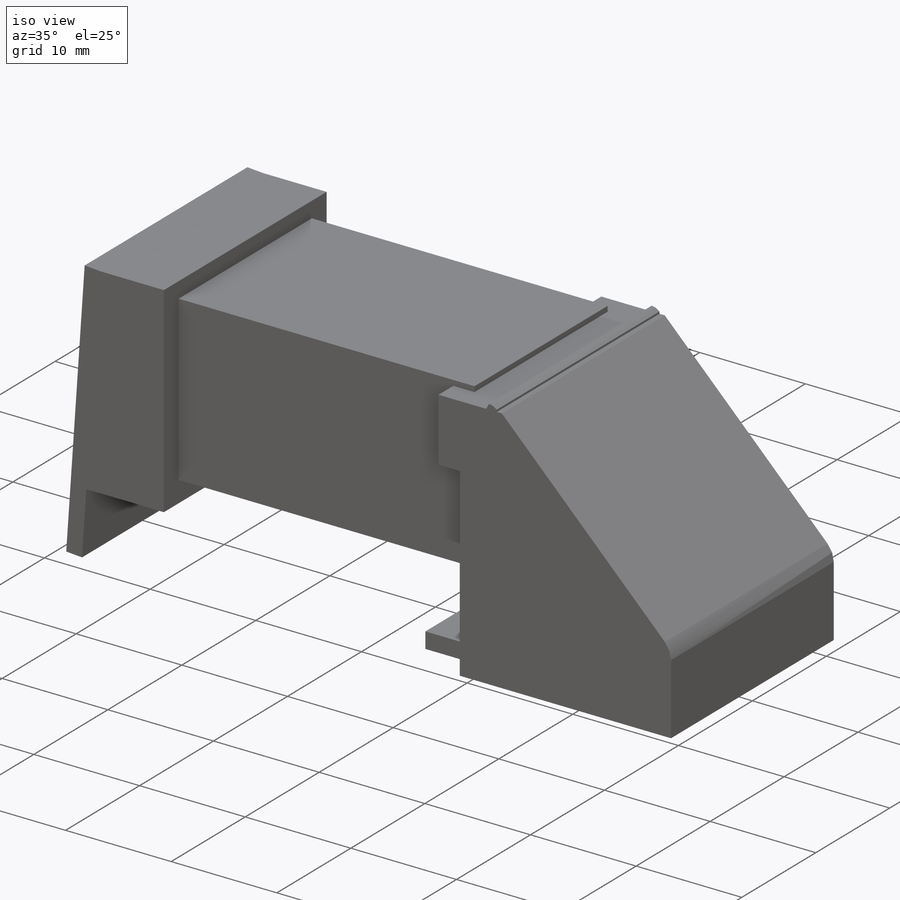
[diagram: iso view]
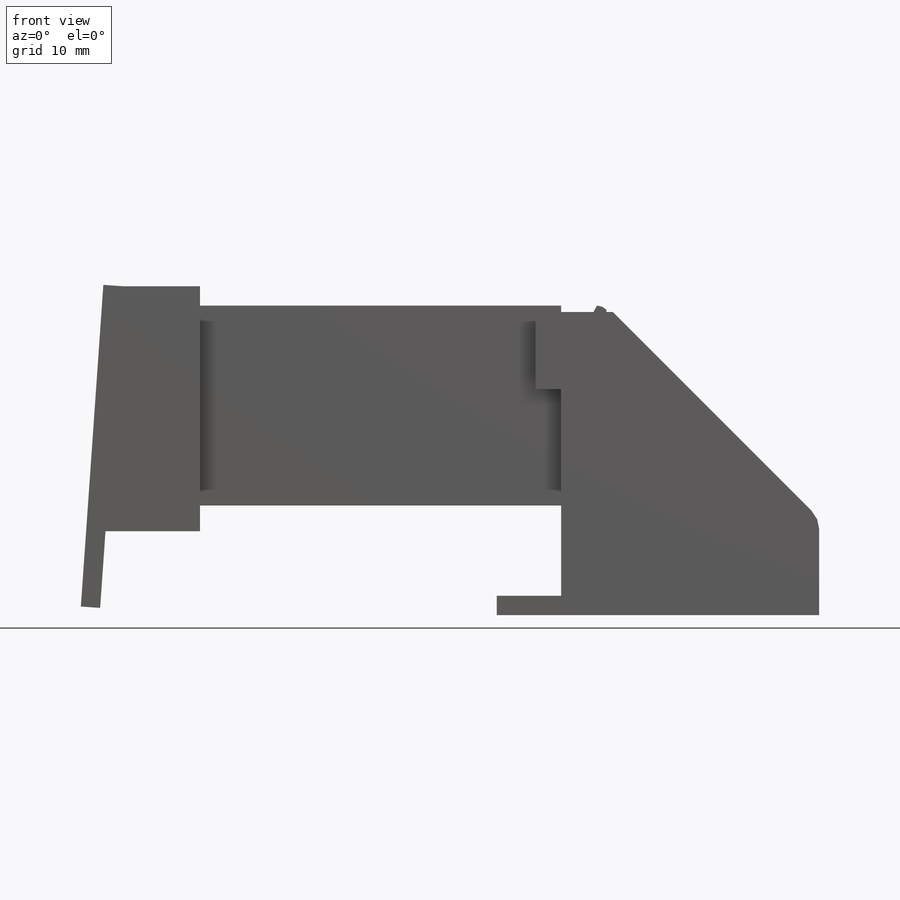
[diagram: front view]
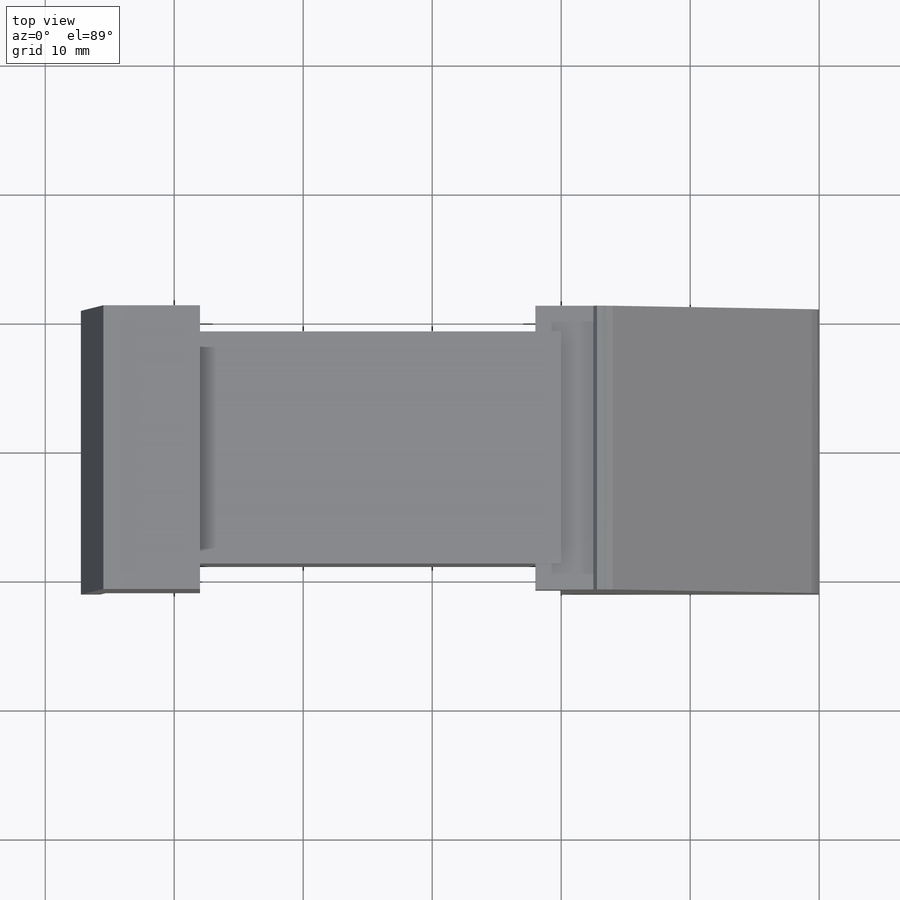
[diagram: top view]
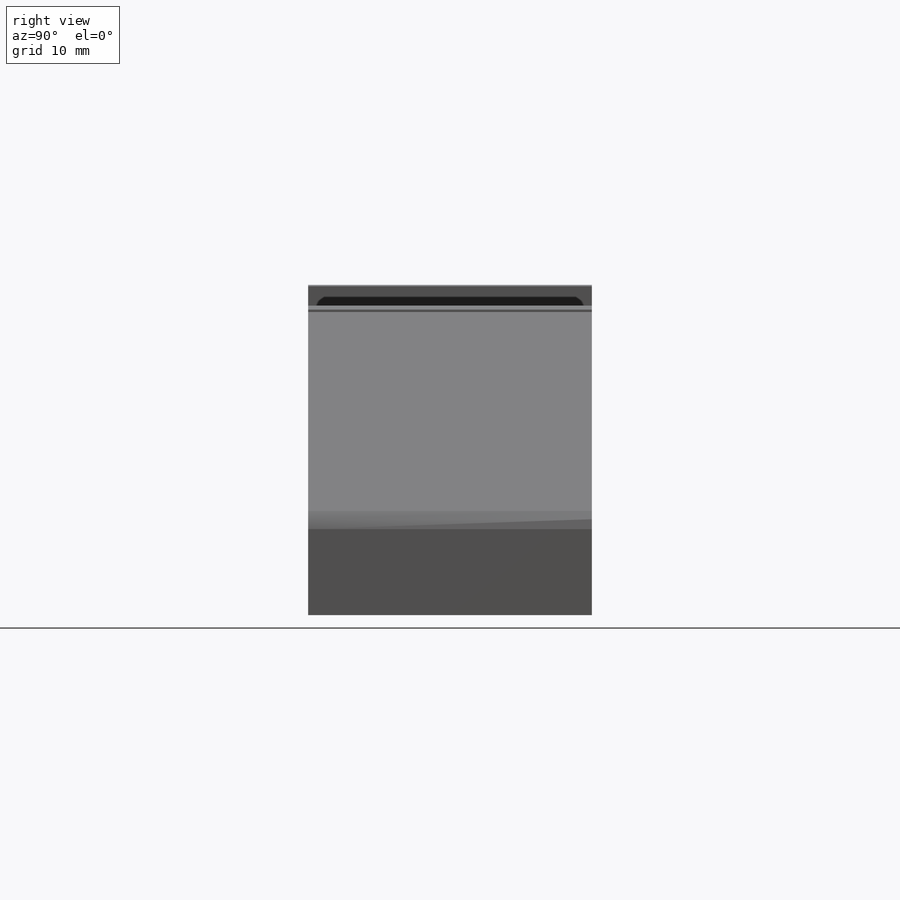
[diagram: right view]
SOLIDWORKS PART (.sldprt)
format: sldprt  version: not decoded by parser v0  size: 469,504 bytes
history: native  units: mm
features: sketch x6, extrude x6, plane x3, material x1, shell x1, fillet x1 (+12 scaffold rows collapsed)
feature tree (30):
  scaffold x12  (default folders/planes/origin — collapsed)
  material  "PVC 0.007 plastifié"
  plane  "Face"
  plane  "Dessus"
  plane  "Droite"
  sketch  "Esquisse2"  dims[c1.D1=20.0mm c1.D2=16.0mm c1.D3=6.0mm c1.D4=6.0mm c1.D5=2.0mm c2.D1=3.0mm c2.D6=20.0mm c2.D7=16.0mm c3.D7=~49.899092deg c4.D7=19.0mm c5.D7=~40.100908deg c6.D7=16.0mm c7.D7=~49.899092deg c7.D1=4.0mm c8.D7=16.0mm c9.D7=~48.366461deg c9.D8=~24.083189mm c9.D1=16.0mm c10.D1=45.0deg c10.D6=4.0mm c10.D7=3.59mm c11.D1=~16.133241mm c12.D1=45.0deg c12.D4=6.0mm c12.D6=8.0mm c12.D7=22.0mm c13.D6=20.0mm c13.D7=6.0mm]
  extrude  "Extrusion1"  Depth=22mm
  sketch  "Esquisse3"  dims[D1=18.0mm D2=15.5mm D3=7.0mm]
  extrude  "Extrusion2"  Depth=28mm
  sketch  "Esquisse4"  dims[D1=22.0mm D2=19.0mm D3=1.5mm D4=1.0mm]
  extrude  "Extrusion3"  Depth=6mm
  shell  "Coque1"  Thickness=2mm
  sketch  "Esquisse6"  dims[D1=22.0mm D2=25.0mm]
  extrude  "Extrusion4"  Depth=1.5mm
  sketch  "Esquisse7"  dims[D1=20.0mm D2=5.0mm D3=17.0mm]
  sketch  "Esquisse8"  dims[c1.D1=1.0mm c1.D2=1.0mm c1.D3=~1.516594mm c1.D4=0.5mm c2.D3=~4.773047mm]
  extrude  "Extrusion7"  [1 undecoded]
  extrude  "Extrusion13"  Depth=1.5mm
  fillet  "Congé1"  Radius=2mm
decode coverage: 13 of 14 modeling features carry decoded parameters
note: ~ marks probable driven/reference dimensions
note: 1 parameter value undecoded
note: suppression state not decoded; provenance and decode notes live in map.json
